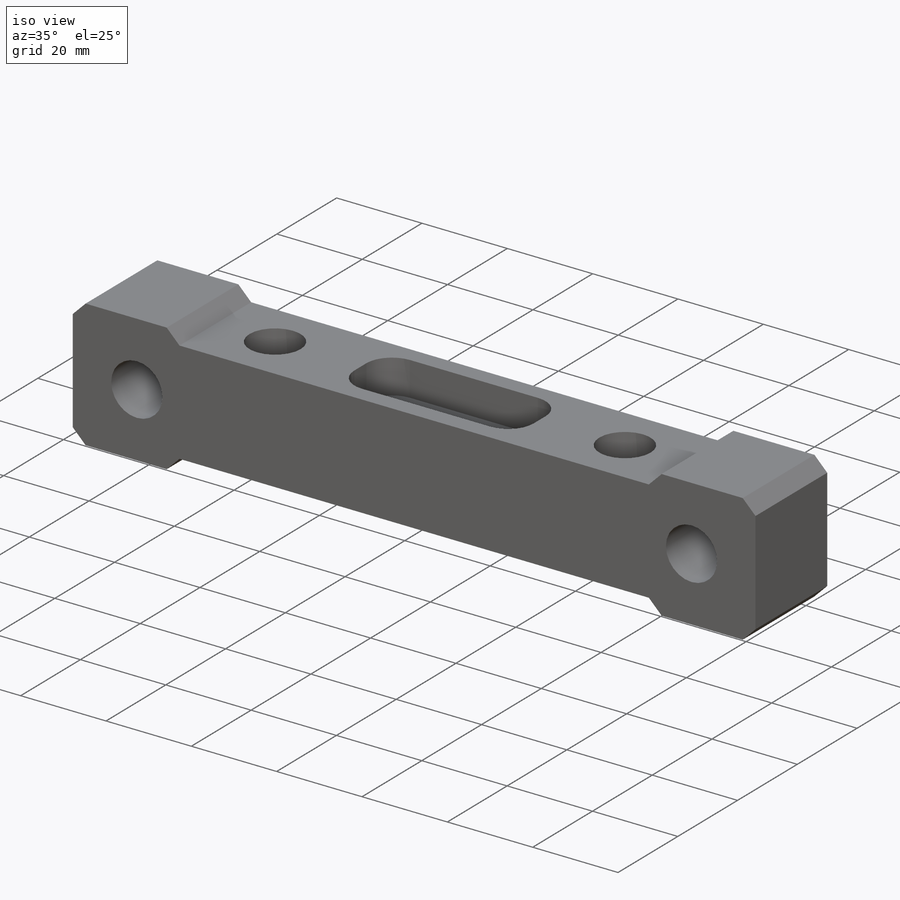
[diagram: iso view]
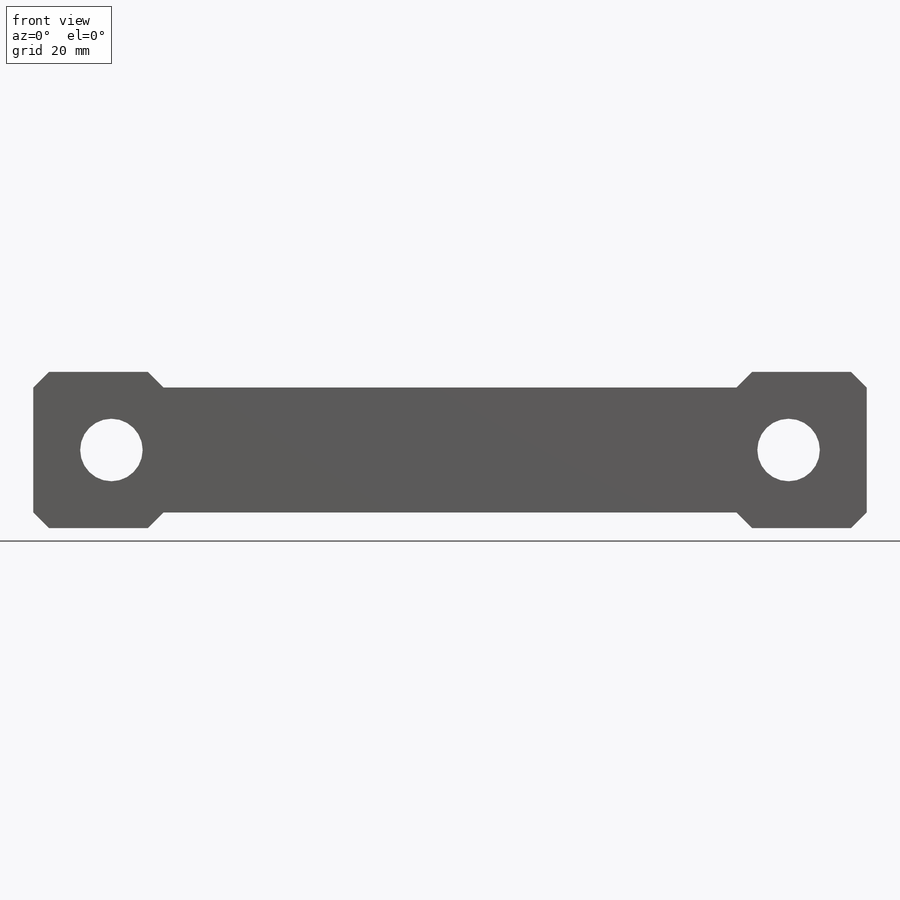
[diagram: front view]
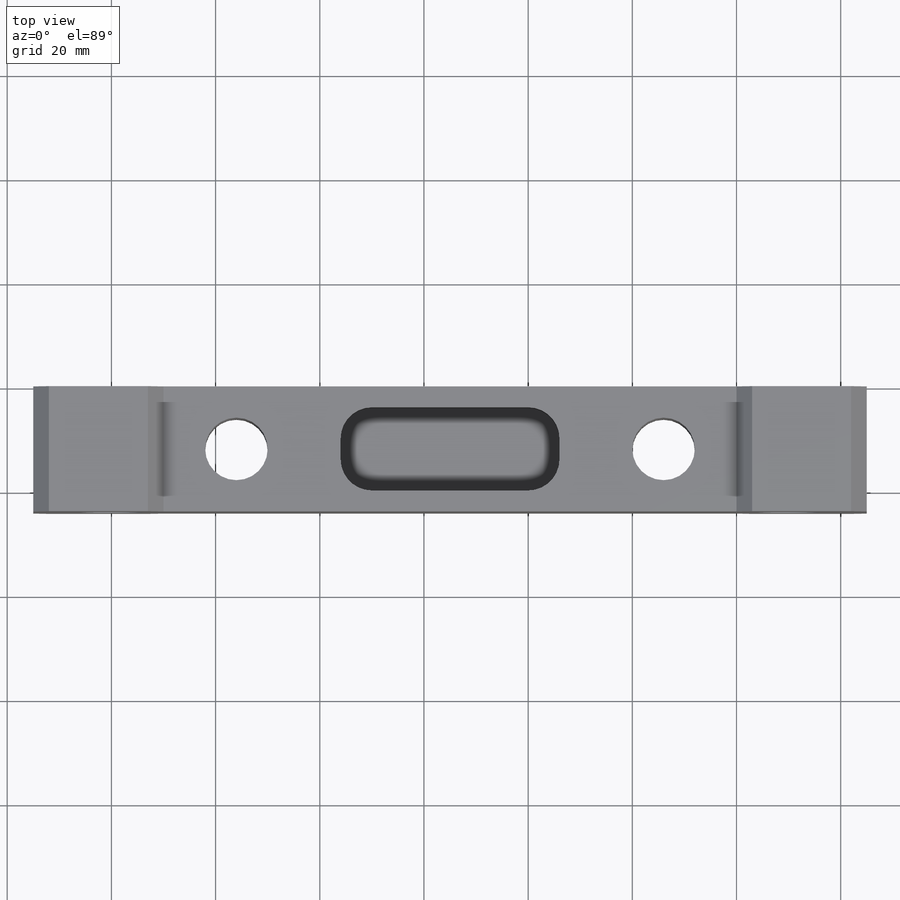
[diagram: top view]
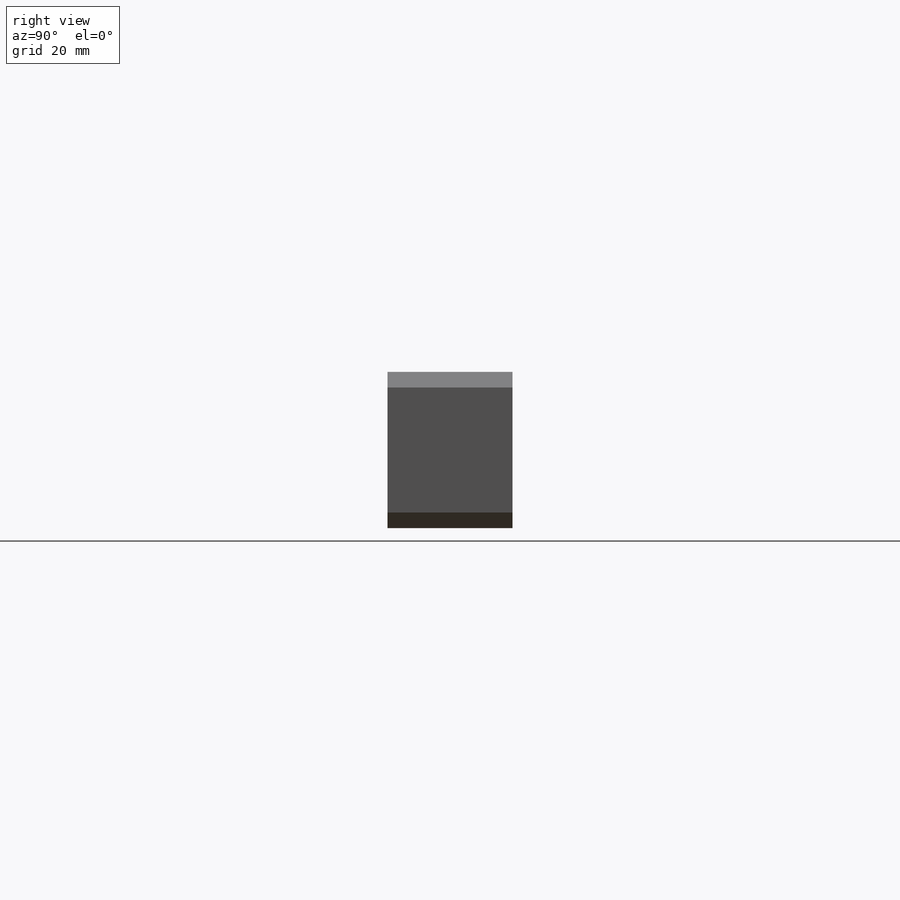
[diagram: right view]
SOLIDWORKS PART (.sldprt)
format: sldprt  version: not decoded by parser v0  size: 290,816 bytes
history: native  units: mm
features: chamfer x6, plane x3, cut_extrude x3, thread x2, material x1, sketch x1, extrude x1, hole x1 (+10 scaffold rows collapsed)
feature tree (28):
  scaffold x10  (default folders/planes/origin — collapsed)
  material  "7075-T6 (SN)"
  plane  "Plan de face"
  plane  "Plan de dessus"
  plane  "Plan de droite"
  sketch  "Esquisse1"  dims[c1.D1=100.0mm c1.D2=25.0mm c1.D3=25.0mm c1.D4=100.0mm c1.D5=15.0mm c2.D4=30.0mm c2.D5=30.0mm c2.D6=24.0mm c2.D7=3.0mm c2.D8=3.0mm c2.D9=3.0mm c2.D10=3.0mm c2.D11=15.0mm c2.D12=15.0mm c2.D13=15.0mm c3.D10=3.0mm c3.D9=25.0mm c3.D6=24.0mm c4.D9=25.0mm c4.D10=25.0mm c4.D11=110.0mm c4.D12=3.0mm c4.D13=3.0mm c4.D14=160.0mm c4.D15=15.0mm c4.D16=15.0mm c4.D17=15.0mm c4.D18=15.0mm]
  extrude  "Boss.-Extru.1"  Depth=24mm
  chamfer  "Chanfrein1"  Distance=3mm Angle=45deg
  hole  "Trou taraudé M14x2.01"  [1 undecoded]
  chamfer  "Esquisse3"  [1 undecoded]
  chamfer  "Esquisse2"  Distance=25.4mm Angle=90deg 4=25.4mm Diamètre du trou pour taraudage jusqu'au prochain=12mm Profondeur du trou pour taraudage jusqu'au prochain=24mm
  thread  "Filetage de perçage1"  Diameter=14mm  [1 undecoded]
  thread  "Filetage de perçage2"  Diameter=14mm  [1 undecoded]
  chamfer  "Esquisse4"  Distance=41mm
  cut_extrude  "Enlèv. mat.-Extru.1"  Depth=24mm
  chamfer  "Esquisse5"  Distance=8mm
  cut_extrude  "Enlèv. mat.-Extru.2"  Depth=8mm
  chamfer  "Esquisse6"  Distance=8mm
  cut_extrude  "Enlèv. mat.-Extru.3"  Depth=8mm
decode coverage: 12 of 14 modeling features carry decoded parameters
note: 4 parameter values undecoded
note: suppression state not decoded; provenance and decode notes live in map.json
